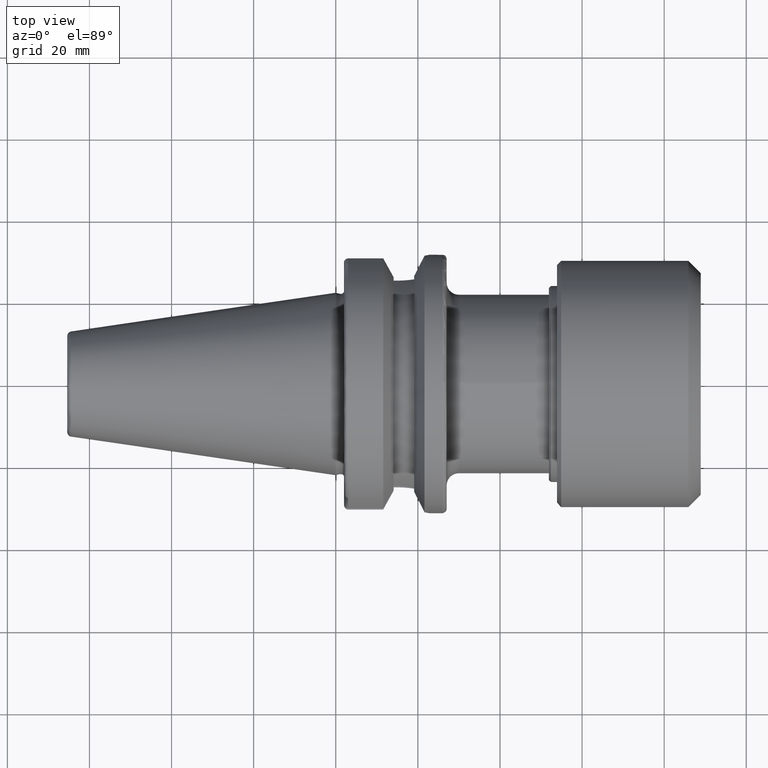
[diagram: clean part render]
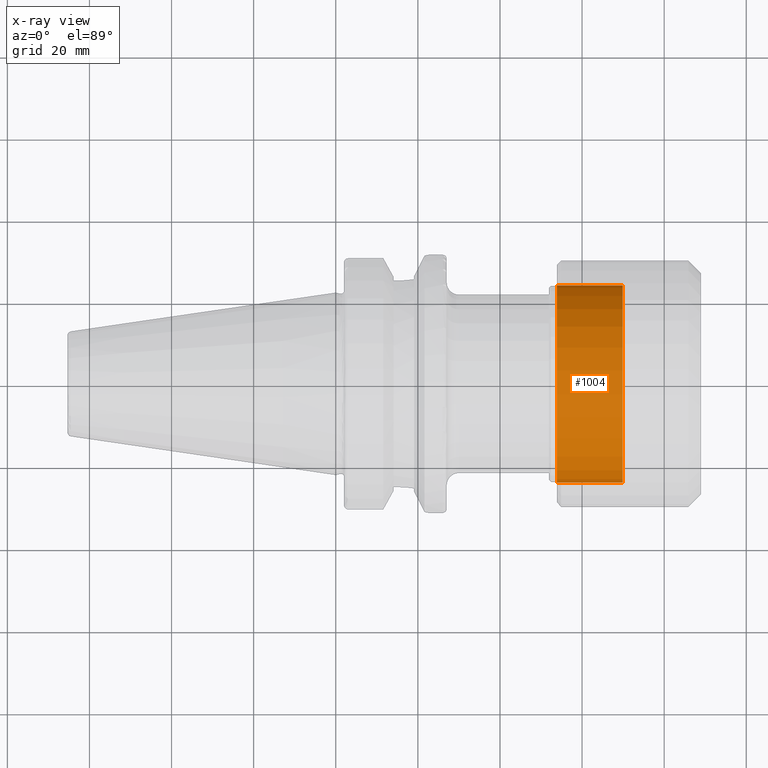
[diagram: x-ray — body ghosted, one internal face saturated and labeled with its STEP entity id]
A machine part, top view, then the same camera in x-ray: the body is ghosted and one INTERNAL B-rep face — a face not visible from any outside direction — is saturated and labeled: STEP entity #1004.
In plain terms, the highlighted cylindrical surface (bore or boss wall) has radius 24 mm, axis along (-1, 0, 0).
Its self-contained STEP definition (entity closure, byte-faithful):
#109=CYLINDRICAL_SURFACE('',#1204,24.);
#165=FACE_OUTER_BOUND('',#234,.T.);
#234=EDGE_LOOP('',(#912,#913,#914,#915));
#290=LINE('',#1922,#342);
#342=VECTOR('',#1511,24.);
#409=CIRCLE('',#1203,24.);
#410=CIRCLE('',#1205,24.);
#502=VERTEX_POINT('',#1918);
#503=VERTEX_POINT('',#1921);
#640=EDGE_CURVE('',#502,#502,#409,.T.);
#641=EDGE_CURVE('',#502,#503,#290,.T.);
#642=EDGE_CURVE('',#503,#503,#410,.T.);
#912=ORIENTED_EDGE('',*,*,#640,.F.);
#913=ORIENTED_EDGE('',*,*,#641,.T.);
#914=ORIENTED_EDGE('',*,*,#642,.F.);
#915=ORIENTED_EDGE('',*,*,#641,.F.);
#1004=ADVANCED_FACE('',(#165),#109,.F.);
#1203=AXIS2_PLACEMENT_3D('',#1919,#1507,#1508);
#1204=AXIS2_PLACEMENT_3D('',#1920,#1509,#1510);
#1205=AXIS2_PLACEMENT_3D('',#1923,#1512,#1513);
#1507=DIRECTION('center_axis',(-1.,0.,0.));
#1508=DIRECTION('ref_axis',(0.,0.,1.));
#1509=DIRECTION('center_axis',(-1.,0.,0.));
#1510=DIRECTION('ref_axis',(0.,1.,0.));
#1511=DIRECTION('',(-1.,0.,0.));
#1512=DIRECTION('center_axis',(1.,0.,0.));
#1513=DIRECTION('ref_axis',(0.,1.,0.));
#1918=CARTESIAN_POINT('',(16.,-24.,2.93915231795365E-15));
#1919=CARTESIAN_POINT('Origin',(16.,0.,0.));
#1920=CARTESIAN_POINT('Origin',(8.,0.,0.));
#1921=CARTESIAN_POINT('',(0.,-24.,2.93915231795365E-15));
#1922=CARTESIAN_POINT('',(8.,-24.,2.93915231795365E-15));
#1923=CARTESIAN_POINT('Origin',(0.,0.,0.));